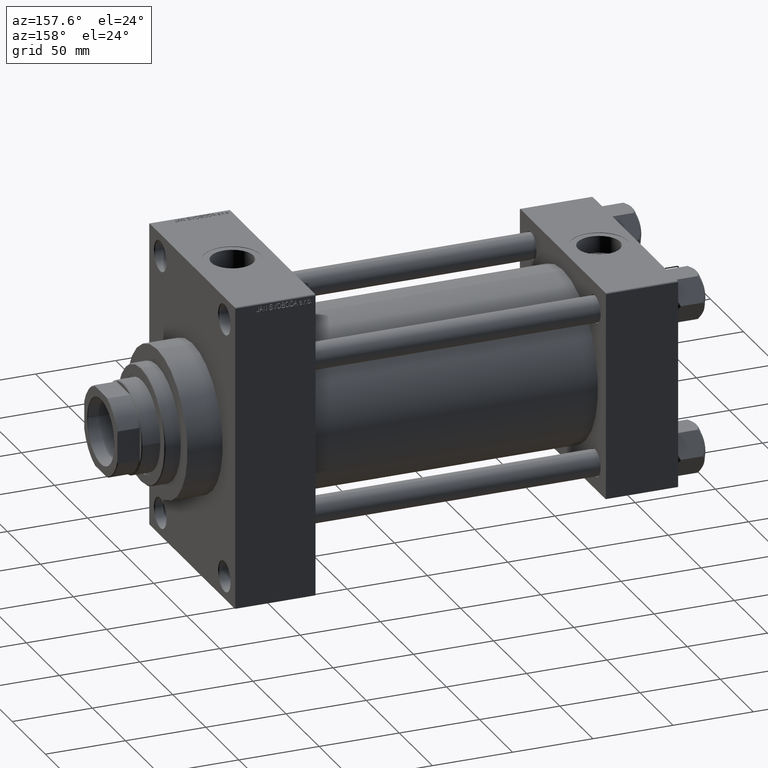
[diagram: clean part render]
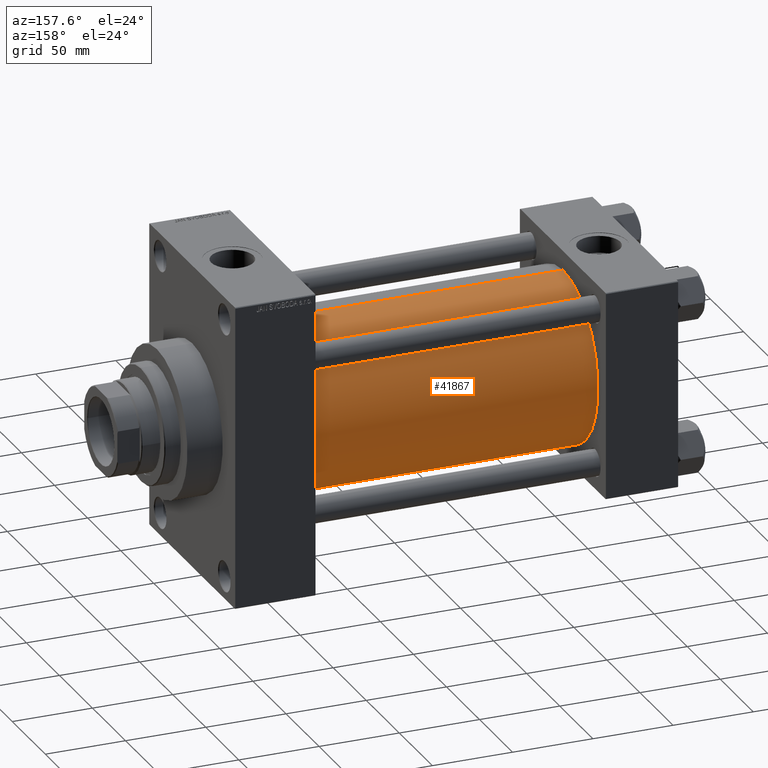
[diagram: same view with one face highlighted and labeled with its STEP entity id]
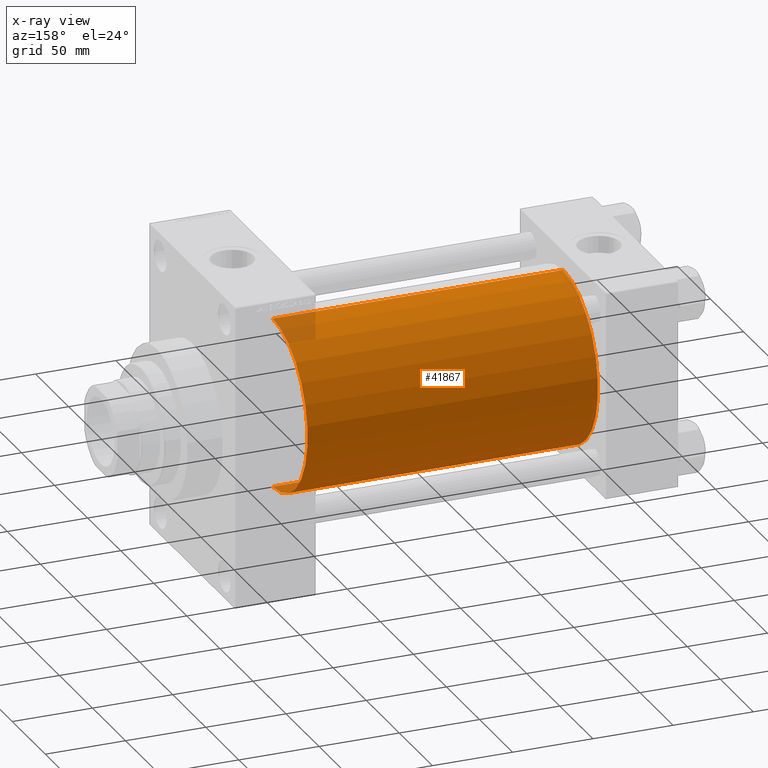
[diagram: x-ray of the same camera — body ghosted, the highlighted face saturated]
A machine part, auxiliary view. The second image highlights one B-rep face of the part: STEP entity #41867.
The next image is the same camera in x-ray: the body ghosted, the highlighted face saturated — about 2% of this face is hidden behind the body in this view.
In plain terms, the highlighted cylindrical surface (partial cylindrical patch) has radius 53 mm, axis along (-1, -0, -0).
Its self-contained STEP definition (entity closure, byte-faithful):
#1362 = CARTESIAN_POINT ( 'NONE',  ( 225.9999999999999716, 3.888542821515762466E-15, -53.00000000000000711 ) ) ;
#2418 = CARTESIAN_POINT ( 'NONE',  ( 225.9999999999999716, -2.602085213965210642E-15, 0.000000000000000000 ) ) ;
#2656 = CYLINDRICAL_SURFACE ( 'NONE', #7293, 53.00000000000000711 ) ;
#2929 = CARTESIAN_POINT ( 'NONE',  ( 225.9999999999999716, 3.888542821515762466E-15, -53.00000000000000711 ) ) ;
#3347 = LINE ( 'NONE', #18073, #20146 ) ;
#4099 = CARTESIAN_POINT ( 'NONE',  ( 44.99999999999998579, 3.888542821515762466E-15, -53.00000000000000711 ) ) ;
#5654 = CARTESIAN_POINT ( 'NONE',  ( 225.9999999999999716, -2.602085213965210642E-15, 53.00000000000000711 ) ) ;
#6239 = EDGE_LOOP ( 'NONE', ( #7961, #38559, #28051, #16780 ) ) ;
#7175 = CARTESIAN_POINT ( 'NONE',  ( 225.9999999999999716, -2.602085213965210642E-15, 0.000000000000000000 ) ) ;
#7293 = AXIS2_PLACEMENT_3D ( 'NONE', #2418, #16901, #21237 ) ;
#7635 = DIRECTION ( 'NONE',  ( 0.000000000000000000, 0.000000000000000000, -1.000000000000000000 ) ) ;
#7961 = ORIENTED_EDGE ( 'NONE', *, *, #21705, .F. ) ;
#10682 = VERTEX_POINT ( 'NONE', #36426 ) ;
#16780 = ORIENTED_EDGE ( 'NONE', *, *, #19987, .F. ) ;
#16901 = DIRECTION ( 'NONE',  ( -1.000000000000000000, -0.000000000000000000, -0.000000000000000000 ) ) ;
#17101 = CIRCLE ( 'NONE', #17895, 53.00000000000000711 ) ;
#17895 = AXIS2_PLACEMENT_3D ( 'NONE', #7175, #40977, #7635 ) ;
#18073 = CARTESIAN_POINT ( 'NONE',  ( 225.9999999999999716, -2.602085213965210642E-15, 53.00000000000000711 ) ) ;
#19987 = EDGE_CURVE ( 'NONE', #24073, #10682, #3347, .T. ) ;
#20146 = VECTOR ( 'NONE', #44166, 1000.000000000000000 ) ;
#21237 = DIRECTION ( 'NONE',  ( 0.000000000000000000, 0.000000000000000000, 1.000000000000000000 ) ) ;
#21705 = EDGE_CURVE ( 'NONE', #34345, #24073, #17101, .T. ) ;
#22312 = EDGE_CURVE ( 'NONE', #34345, #34875, #43268, .T. ) ;
#24073 = VERTEX_POINT ( 'NONE', #5654 ) ;
#28051 = ORIENTED_EDGE ( 'NONE', *, *, #29084, .T. ) ;
#29084 = EDGE_CURVE ( 'NONE', #34875, #10682, #32707, .T. ) ;
#30855 = CARTESIAN_POINT ( 'NONE',  ( 44.99999999999998579, -2.602085213965210642E-15, 0.000000000000000000 ) ) ;
#32707 = CIRCLE ( 'NONE', #40373, 53.00000000000000711 ) ;
#33357 = VECTOR ( 'NONE', #43028, 1000.000000000000000 ) ;
#34345 = VERTEX_POINT ( 'NONE', #1362 ) ;
#34875 = VERTEX_POINT ( 'NONE', #4099 ) ;
#35523 = FACE_OUTER_BOUND ( 'NONE', #6239, .T. ) ;
#36426 = CARTESIAN_POINT ( 'NONE',  ( 44.99999999999998579, -2.602085213965210642E-15, 53.00000000000000711 ) ) ;
#38559 = ORIENTED_EDGE ( 'NONE', *, *, #22312, .T. ) ;
#40373 = AXIS2_PLACEMENT_3D ( 'NONE', #30855, #44867, #45101 ) ;
#40977 = DIRECTION ( 'NONE',  ( 1.000000000000000000, 0.000000000000000000, 0.000000000000000000 ) ) ;
#41867 = ADVANCED_FACE ( 'NONE', ( #35523 ), #2656, .T. ) ;
#43028 = DIRECTION ( 'NONE',  ( -1.000000000000000000, -0.000000000000000000, -0.000000000000000000 ) ) ;
#43268 = LINE ( 'NONE', #2929, #33357 ) ;
#44166 = DIRECTION ( 'NONE',  ( -1.000000000000000000, -0.000000000000000000, -0.000000000000000000 ) ) ;
#44867 = DIRECTION ( 'NONE',  ( 1.000000000000000000, -0.000000000000000000, 0.000000000000000000 ) ) ;
#45101 = DIRECTION ( 'NONE',  ( 0.000000000000000000, 0.000000000000000000, 1.000000000000000000 ) ) ;